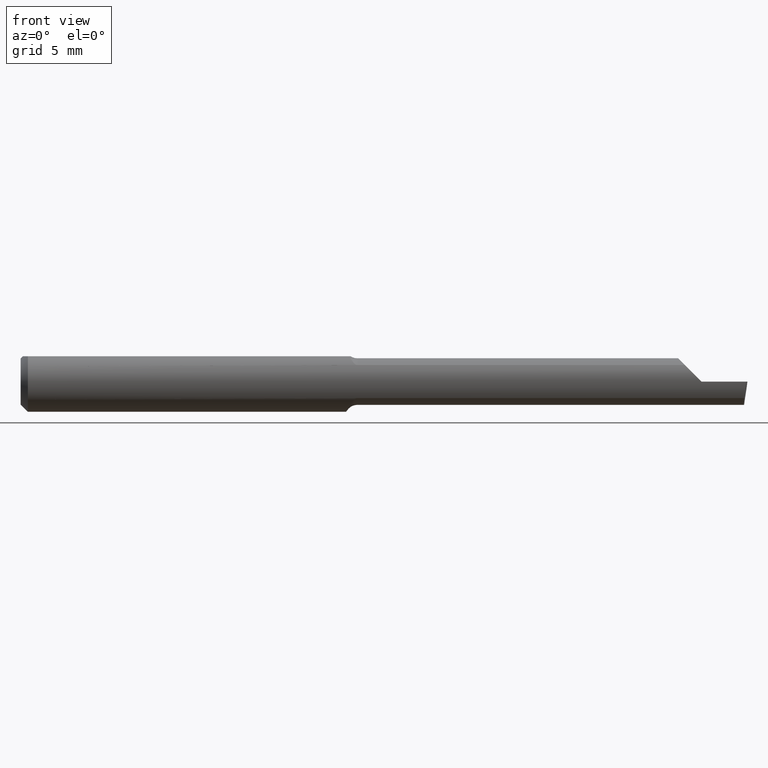
[diagram: clean part render]
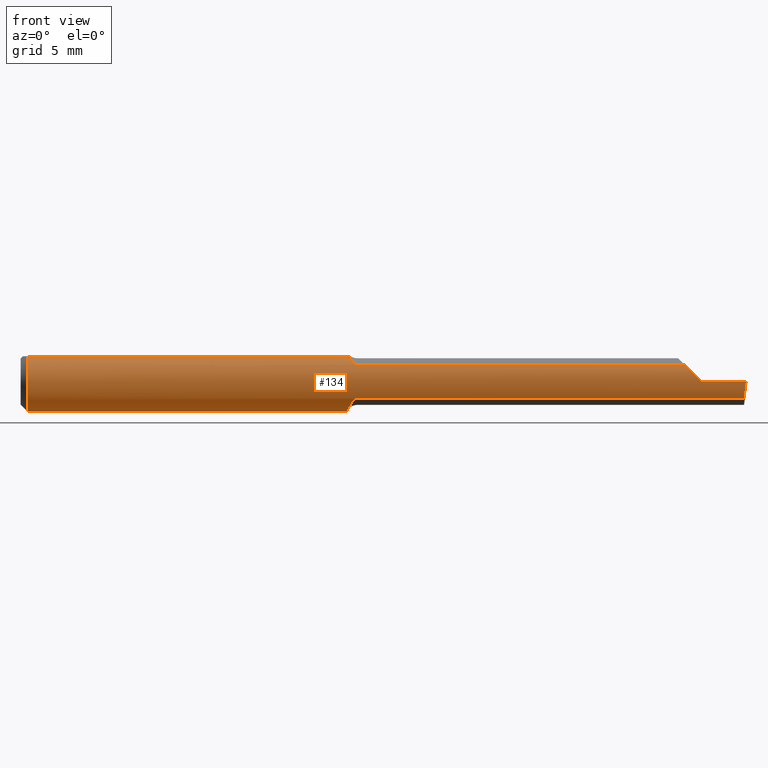
[diagram: same view with one face highlighted and labeled with its STEP entity id]
A machine part, front view. The second image highlights one B-rep face of the part: STEP entity #134.
In plain terms, the highlighted cylindrical surface (edge-blend (fillet) strip) has radius 1.5837 mm, axis along (-1, -0, -0).
Its self-contained STEP definition (entity closure, byte-faithful):
#1 = CARTESIAN_POINT ( 'NONE',  ( 0.6891789796355746178, -0.05033758282016002894, 0.03680695256572100865 ) ) ;
#5 = CARTESIAN_POINT ( 'NONE',  ( 0.6936283801985738684, -0.05210000000115985741, 0.03425072991746559714 ) ) ;
#8 = DIRECTION ( 'NONE',  ( -1.000000000000000000, -0.000000000000000000, -0.000000000000000000 ) ) ;
#11 = VECTOR ( 'NONE', #612, 39.37007874015748143 ) ;
#19 = AXIS2_PLACEMENT_3D ( 'NONE', #478, #35, #532 ) ;
#27 = CARTESIAN_POINT ( 'NONE',  ( 1.370749270080770632, -0.05210000000000009068, 0.03425072991922931132 ) ) ;
#31 = CARTESIAN_POINT ( 'NONE',  ( 1.055000000000000160, -0.05210000000000012538, 0.03425072991922926274 ) ) ;
#32 = EDGE_CURVE ( 'NONE', #698, #240, #672, .T. ) ;
#33 = AXIS2_PLACEMENT_3D ( 'NONE', #694, #8, #623 ) ;
#35 = DIRECTION ( 'NONE',  ( -1.000000000000000000, -0.000000000000000000, -0.000000000000000000 ) ) ;
#48 = LINE ( 'NONE', #217, #61 ) ;
#50 = DIRECTION ( 'NONE',  ( 1.000000000000000000, 0.000000000000000000, 0.000000000000000000 ) ) ;
#52 = CARTESIAN_POINT ( 'NONE',  ( 0.6790023436943706248, -0.03635371779854208729, -0.05080473676934859489 ) ) ;
#54 = CARTESIAN_POINT ( 'NONE',  ( 0.6702082692914423934, 0.01460127996857727047, -0.06118787137580498914 ) ) ;
#59 = EDGE_CURVE ( 'NONE', #480, #380, #488, .T. ) ;
#61 = VECTOR ( 'NONE', #546, 39.37007874015748143 ) ;
#64 = CARTESIAN_POINT ( 'NONE',  ( 0.6923254665516394013, -0.05179156103573031439, 0.03472422648579293752 ) ) ;
#66 = VERTEX_POINT ( 'NONE', #668 ) ;
#67 = CARTESIAN_POINT ( 'NONE',  ( 0.01500000000000000465, 0.000000000000000000, -0.06235000000000000264 ) ) ;
#71 = FACE_OUTER_BOUND ( 'NONE', #508, .T. ) ;
#82 = DIRECTION ( 'NONE',  ( 0.000000000000000000, 0.000000000000000000, -1.000000000000000000 ) ) ;
#85 = EDGE_CURVE ( 'NONE', #539, #560, #652, .T. ) ;
#88 = CARTESIAN_POINT ( 'NONE',  ( 1.493233423732482024, -0.05210000000000012538, -0.03425072991922926274 ) ) ;
#89 = ORIENTED_EDGE ( 'NONE', *, *, #358, .F. ) ;
#93 = CARTESIAN_POINT ( 'NONE',  ( 1.380994055934046782, -0.05883495956508443675, 0.02400594406595336905 ) ) ;
#113 = CARTESIAN_POINT ( 'NONE',  ( 0.6747104858884209744, -0.02227973916747847880, -0.05837485801745211089 ) ) ;
#117 = DIRECTION ( 'NONE',  ( 0.000000000000000000, 0.000000000000000000, 1.000000000000000000 ) ) ;
#120 = CARTESIAN_POINT ( 'NONE',  ( 0.6723860608652274529, -0.01052139226165771727, -0.06200658662318049574 ) ) ;
#128 = CARTESIAN_POINT ( 'NONE',  ( 0.6866024100878113101, -0.04843664215652601635, 0.03931692004732145751 ) ) ;
#130 = EDGE_CURVE ( 'NONE', #172, #274, #352, .T. ) ;
#134 = ADVANCED_FACE ( 'NONE', ( #71 ), #578, .T. ) ;
#143 = EDGE_CURVE ( 'NONE', #596, #698, #704, .T. ) ;
#144 = CARTESIAN_POINT ( 'NONE',  ( 0.01500000000000185039, -0.03386738844380016850, 0.05235000000000000070 ) ) ;
#145 = ORIENTED_EDGE ( 'NONE', *, *, #276, .T. ) ;
#163 = CARTESIAN_POINT ( 'NONE',  ( 0.6928708008506145877, -0.05210000000000022946, -0.03425072991922910315 ) ) ;
#167 = CARTESIAN_POINT ( 'NONE',  ( 1.493233423732482024, -0.05210000000000012538, -0.03425072991922926274 ) ) ;
#170 = LINE ( 'NONE', #441, #664 ) ;
#172 = VERTEX_POINT ( 'NONE', #67 ) ;
#177 = CARTESIAN_POINT ( 'NONE',  ( 1.055000000000000160, -0.05210000000000012538, -0.03425072991922926274 ) ) ;
#188 = CARTESIAN_POINT ( 'NONE',  ( 0.6739435274990672742, -0.01839999999999994418, -0.05957316929625284391 ) ) ;
#192 = AXIS2_PLACEMENT_3D ( 'NONE', #301, #248, #82 ) ;
#196 = CARTESIAN_POINT ( 'NONE',  ( 0.6950000000000000622, -0.05210000000000024334, 0.03425072991922908927 ) ) ;
#211 = EDGE_CURVE ( 'NONE', #446, #266, #576, .T. ) ;
#216 = VECTOR ( 'NONE', #399, 39.37007874015748143 ) ;
#217 = CARTESIAN_POINT ( 'NONE',  ( 0.000000000000000000, -0.03386738844375222768, 0.05234999999999997988 ) ) ;
#221 = CARTESIAN_POINT ( 'NONE',  ( 0.6880636144450135161, -0.04963912592730913842, -0.03775824298307021293 ) ) ;
#230 = CARTESIAN_POINT ( 'NONE',  ( 0.6901117046627790463, -0.05090166660896893597, 0.03601608024180035644 ) ) ;
#240 = VERTEX_POINT ( 'NONE', #27 ) ;
#248 = DIRECTION ( 'NONE',  ( 1.000000000000000000, 0.000000000000000000, 0.000000000000000000 ) ) ;
#249 = CARTESIAN_POINT ( 'NONE',  ( 1.497171920470529161, -0.06235000000000005121, 3.552677088412709094E-19 ) ) ;
#252 = CARTESIAN_POINT ( 'NONE',  ( 1.494315395341277553, -0.05883495956508443675, -0.02400594406595338293 ) ) ;
#259 = EDGE_CURVE ( 'NONE', #480, #172, #566, .T. ) ;
#266 = VERTEX_POINT ( 'NONE', #474 ) ;
#268 = CIRCLE ( 'NONE', #192, 0.06235000000000000264 ) ;
#269 = CARTESIAN_POINT ( 'NONE',  ( 0.6868557543361659690, -0.04856891343705606323, -0.03913748562448242374 ) ) ;
#274 = VERTEX_POINT ( 'NONE', #144 ) ;
#275 = CARTESIAN_POINT ( 'NONE',  ( 0.6739435274990672742, -0.01839999999999994418, -0.05957316929625284391 ) ) ;
#276 = EDGE_CURVE ( 'NONE', #572, #240, #443, .T. ) ;
#279 = DIRECTION ( 'NONE',  ( -1.000000000000000000, -0.000000000000000000, -0.000000000000000000 ) ) ;
#301 = CARTESIAN_POINT ( 'NONE',  ( 0.6700000000000000400, 0.000000000000000000, 0.000000000000000000 ) ) ;
#316 = ORIENTED_EDGE ( 'NONE', *, *, #85, .F. ) ;
#320 = ORIENTED_EDGE ( 'NONE', *, *, #594, .F. ) ;
#334 = ORIENTED_EDGE ( 'NONE', *, *, #32, .F. ) ;
#352 = CIRCLE ( 'NONE', #33, 0.06235000000000000264 ) ;
#355 = B_SPLINE_CURVE_WITH_KNOTS ( 'NONE', 3,
 ( #384, #163, #548, #221, #269, #496, #396, #52, #732, #742, #113, #727 ),
 .UNSPECIFIED., .F., .F.,
 ( 4, 2, 2, 2, 2, 4 ),
 ( 1.968188672663559732E-07, 0.0001598826679621229488, 0.0003195685170569795351, 0.0006389402152466981287, 0.0009583119134364166680, 0.001277683611626135316 ),
 .UNSPECIFIED. ) ;
#358 = EDGE_CURVE ( 'NONE', #66, #539, #355, .T. ) ;
#364 = CARTESIAN_POINT ( 'NONE',  ( 1.392739685260043325, -0.06235000000000000264, 0.01226031473995679161 ) ) ;
#369 = EDGE_CURVE ( 'NONE', #266, #572, #170, .T. ) ;
#370 = ORIENTED_EDGE ( 'NONE', *, *, #211, .T. ) ;
#380 = VERTEX_POINT ( 'NONE', #723 ) ;
#384 = CARTESIAN_POINT ( 'NONE',  ( 0.6950000000000000622, -0.05210000000000025028, -0.03425072991922908233 ) ) ;
#396 = CARTESIAN_POINT ( 'NONE',  ( 0.6819606783407131667, -0.04239780856895218608, -0.04588180363204262535 ) ) ;
#397 = ORIENTED_EDGE ( 'NONE', *, *, #130, .F. ) ;
#399 = DIRECTION ( 'NONE',  ( -1.000000000000000000, -0.000000000000000000, -0.000000000000000000 ) ) ;
#401 = CARTESIAN_POINT ( 'NONE',  ( 0.6815797100125446928, -0.04200879032723225937, 0.04631940421101467253 ) ) ;
#405 = EDGE_CURVE ( 'NONE', #596, #274, #48, .T. ) ;
#407 = ORIENTED_EDGE ( 'NONE', *, *, #660, .F. ) ;
#417 = CARTESIAN_POINT ( 'NONE',  ( 1.405000000000000249, -0.06235000000000005121, 1.163414459189982046E-17 ) ) ;
#426 = CARTESIAN_POINT ( 'NONE',  ( 1.495666027076596682, -0.06235000000000003040, -0.01226031473995679681 ) ) ;
#441 = CARTESIAN_POINT ( 'NONE',  ( 2.249639673992775738E-32, -0.06234999999999999570, 1.836970198721025250E-16 ) ) ;
#443 =( BOUNDED_CURVE ( )  B_SPLINE_CURVE ( 3, ( #417, #364, #93, #714 ),
 .UNSPECIFIED., .F., .T. ) 
 B_SPLINE_CURVE_WITH_KNOTS ( ( 4, 4 ),
 ( 4.712388980384689674, 5.293951277779025411 ),
 .UNSPECIFIED. ) 
 CURVE ( )  GEOMETRIC_REPRESENTATION_ITEM ( )  RATIONAL_B_SPLINE_CURVE ( ( 1.000000000000000000, 0.9720134746468970244, 0.9720134746468970244, 1.000000000000000000 ) ) 
 REPRESENTATION_ITEM ( '' )  );
#446 = VERTEX_POINT ( 'NONE', #167 ) ;
#454 = CARTESIAN_POINT ( 'NONE',  ( 0.6713962500143421108, -0.002002297547419344334, -0.06287403108402093987 ) ) ;
#474 = CARTESIAN_POINT ( 'NONE',  ( 1.497171920470529161, -0.06235000000000005121, 3.552677088412709094E-19 ) ) ;
#478 = CARTESIAN_POINT ( 'NONE',  ( 0.01500000000000000465, 0.000000000000000000, 0.000000000000000000 ) ) ;
#480 = VERTEX_POINT ( 'NONE', #559 ) ;
#487 = ORIENTED_EDGE ( 'NONE', *, *, #143, .F. ) ;
#488 = LINE ( 'NONE', #724, #523 ) ;
#496 = CARTESIAN_POINT ( 'NONE',  ( 0.6836313994831700880, -0.04510599191766700294, -0.04319271381807374133 ) ) ;
#501 = CARTESIAN_POINT ( 'NONE',  ( 0.6700000000000000400, 0.02282614954851990355, -0.05862499217990976147 ) ) ;
#505 = CARTESIAN_POINT ( 'NONE',  ( 0.6781439896686971558, -0.03386738844377056717, 0.05235000000000000070 ) ) ;
#508 = EDGE_LOOP ( 'NONE', ( #320, #370, #728, #145, #334, #487, #600, #397, #744, #671, #407, #316, #89 ) ) ;
#509 = CARTESIAN_POINT ( 'NONE',  ( 0.6852324438157196829, -0.04692169178955610254, 0.04112849538229043644 ) ) ;
#513 = CARTESIAN_POINT ( 'NONE',  ( 0.6700000000000000400, 0.03016902173913011548, -0.05456512281030707900 ) ) ;
#517 = CARTESIAN_POINT ( 'NONE',  ( 0.6797417421283760142, -0.03819491529868389301, 0.04955034320923032420 ) ) ;
#523 = VECTOR ( 'NONE', #50, 39.37007874015748143 ) ;
#532 = DIRECTION ( 'NONE',  ( 0.000000000000000000, 0.000000000000000000, 1.000000000000000000 ) ) ;
#539 = VERTEX_POINT ( 'NONE', #188 ) ;
#546 = DIRECTION ( 'NONE',  ( -1.000000000000000000, -0.000000000000000000, -0.000000000000000000 ) ) ;
#548 = CARTESIAN_POINT ( 'NONE',  ( 0.6910018602471944549, -0.05138041438525064314, -0.03535223831097198538 ) ) ;
#559 = CARTESIAN_POINT ( 'NONE',  ( 0.01500000000000000465, 0.03386738844375223462, 0.05234999999999997988 ) ) ;
#560 = VERTEX_POINT ( 'NONE', #574 ) ;
#564 = CARTESIAN_POINT ( 'NONE',  ( 1.405000000000000249, -0.06235000000000005121, 1.163414459189982046E-17 ) ) ;
#566 = CIRCLE ( 'NONE', #19, 0.06235000000000000264 ) ;
#572 = VERTEX_POINT ( 'NONE', #564 ) ;
#574 = CARTESIAN_POINT ( 'NONE',  ( 0.6700000000000000400, 0.03016902173913011548, -0.05456512281030707900 ) ) ;
#576 =( BOUNDED_CURVE ( )  B_SPLINE_CURVE ( 3, ( #88, #252, #426, #249 ),
 .UNSPECIFIED., .F., .F. ) 
 B_SPLINE_CURVE_WITH_KNOTS ( ( 4, 4 ),
 ( 0.7791845851203702544, 1.360746882514706657 ),
 .UNSPECIFIED. ) 
 CURVE ( )  GEOMETRIC_REPRESENTATION_ITEM ( )  RATIONAL_B_SPLINE_CURVE ( ( 1.000000000000000000, 0.9720134746468970244, 0.9720134746468970244, 1.000000000000000000 ) ) 
 REPRESENTATION_ITEM ( '' )  );
#578 = CYLINDRICAL_SURFACE ( 'NONE', #640, 0.06235000000000000264 ) ;
#594 = EDGE_CURVE ( 'NONE', #446, #66, #687, .T. ) ;
#596 = VERTEX_POINT ( 'NONE', #627 ) ;
#600 = ORIENTED_EDGE ( 'NONE', *, *, #405, .T. ) ;
#610 = DIRECTION ( 'NONE',  ( -1.000000000000000000, -0.000000000000000000, -0.000000000000000000 ) ) ;
#612 = DIRECTION ( 'NONE',  ( 1.000000000000000000, 0.000000000000000000, 0.000000000000000000 ) ) ;
#616 = CARTESIAN_POINT ( 'NONE',  ( 0.000000000000000000, 0.000000000000000000, 0.000000000000000000 ) ) ;
#623 = DIRECTION ( 'NONE',  ( 0.000000000000000000, 0.000000000000000000, 1.000000000000000000 ) ) ;
#627 = CARTESIAN_POINT ( 'NONE',  ( 0.6781439896686971558, -0.03386738844377056717, 0.05235000000000000070 ) ) ;
#640 = AXIS2_PLACEMENT_3D ( 'NONE', #616, #279, #117 ) ;
#652 = B_SPLINE_CURVE_WITH_KNOTS ( 'NONE', 3,
 ( #275, #120, #454, #54, #501, #513 ),
 .UNSPECIFIED., .F., .F.,
 ( 4, 2, 4 ),
 ( 0.001277683611626135316, 0.001926233481642343481, 0.002574783351658551430 ),
 .UNSPECIFIED. ) ;
#660 = EDGE_CURVE ( 'NONE', #560, #380, #268, .T. ) ;
#664 = VECTOR ( 'NONE', #610, 39.37007874015748143 ) ;
#668 = CARTESIAN_POINT ( 'NONE',  ( 0.6950000000000000622, -0.05210000000000025028, -0.03425072991922908233 ) ) ;
#671 = ORIENTED_EDGE ( 'NONE', *, *, #59, .T. ) ;
#672 = LINE ( 'NONE', #31, #11 ) ;
#687 = LINE ( 'NONE', #177, #216 ) ;
#690 = CARTESIAN_POINT ( 'NONE',  ( 0.6950000000000000622, -0.05210000000000024334, 0.03425072991922908927 ) ) ;
#694 = CARTESIAN_POINT ( 'NONE',  ( 0.01500000000000000465, 0.000000000000000000, 0.000000000000000000 ) ) ;
#698 = VERTEX_POINT ( 'NONE', #196 ) ;
#704 = B_SPLINE_CURVE_WITH_KNOTS ( 'NONE', 3,
 ( #505, #517, #401, #509, #128, #1, #230, #64, #5, #690 ),
 .UNSPECIFIED., .F., .F.,
 ( 4, 2, 2, 2, 4 ),
 ( 3.799952872679359677E-07, 0.0004056523638566376347, 0.0006082885481413224937, 0.0007096066402836618062, 0.0008109247324260011186 ),
 .UNSPECIFIED. ) ;
#714 = CARTESIAN_POINT ( 'NONE',  ( 1.370749270080770632, -0.05210000000000009068, 0.03425072991922931132 ) ) ;
#723 = CARTESIAN_POINT ( 'NONE',  ( 0.6700000000000000400, 0.03386738844375224156, 0.05235000000000000070 ) ) ;
#724 = CARTESIAN_POINT ( 'NONE',  ( 0.000000000000000000, 0.03386738844375223462, 0.05234999999999997988 ) ) ;
#727 = CARTESIAN_POINT ( 'NONE',  ( 0.6739435274990672742, -0.01839999999999994418, -0.05957316929625284391 ) ) ;
#728 = ORIENTED_EDGE ( 'NONE', *, *, #369, .T. ) ;
#732 = CARTESIAN_POINT ( 'NONE',  ( 0.6777747305127010957, -0.03308328010062954599, -0.05299899880320897011 ) ) ;
#742 = CARTESIAN_POINT ( 'NONE',  ( 0.6756294582975113094, -0.02606820000987082261, -0.05677892429946718861 ) ) ;
#744 = ORIENTED_EDGE ( 'NONE', *, *, #259, .F. ) ;